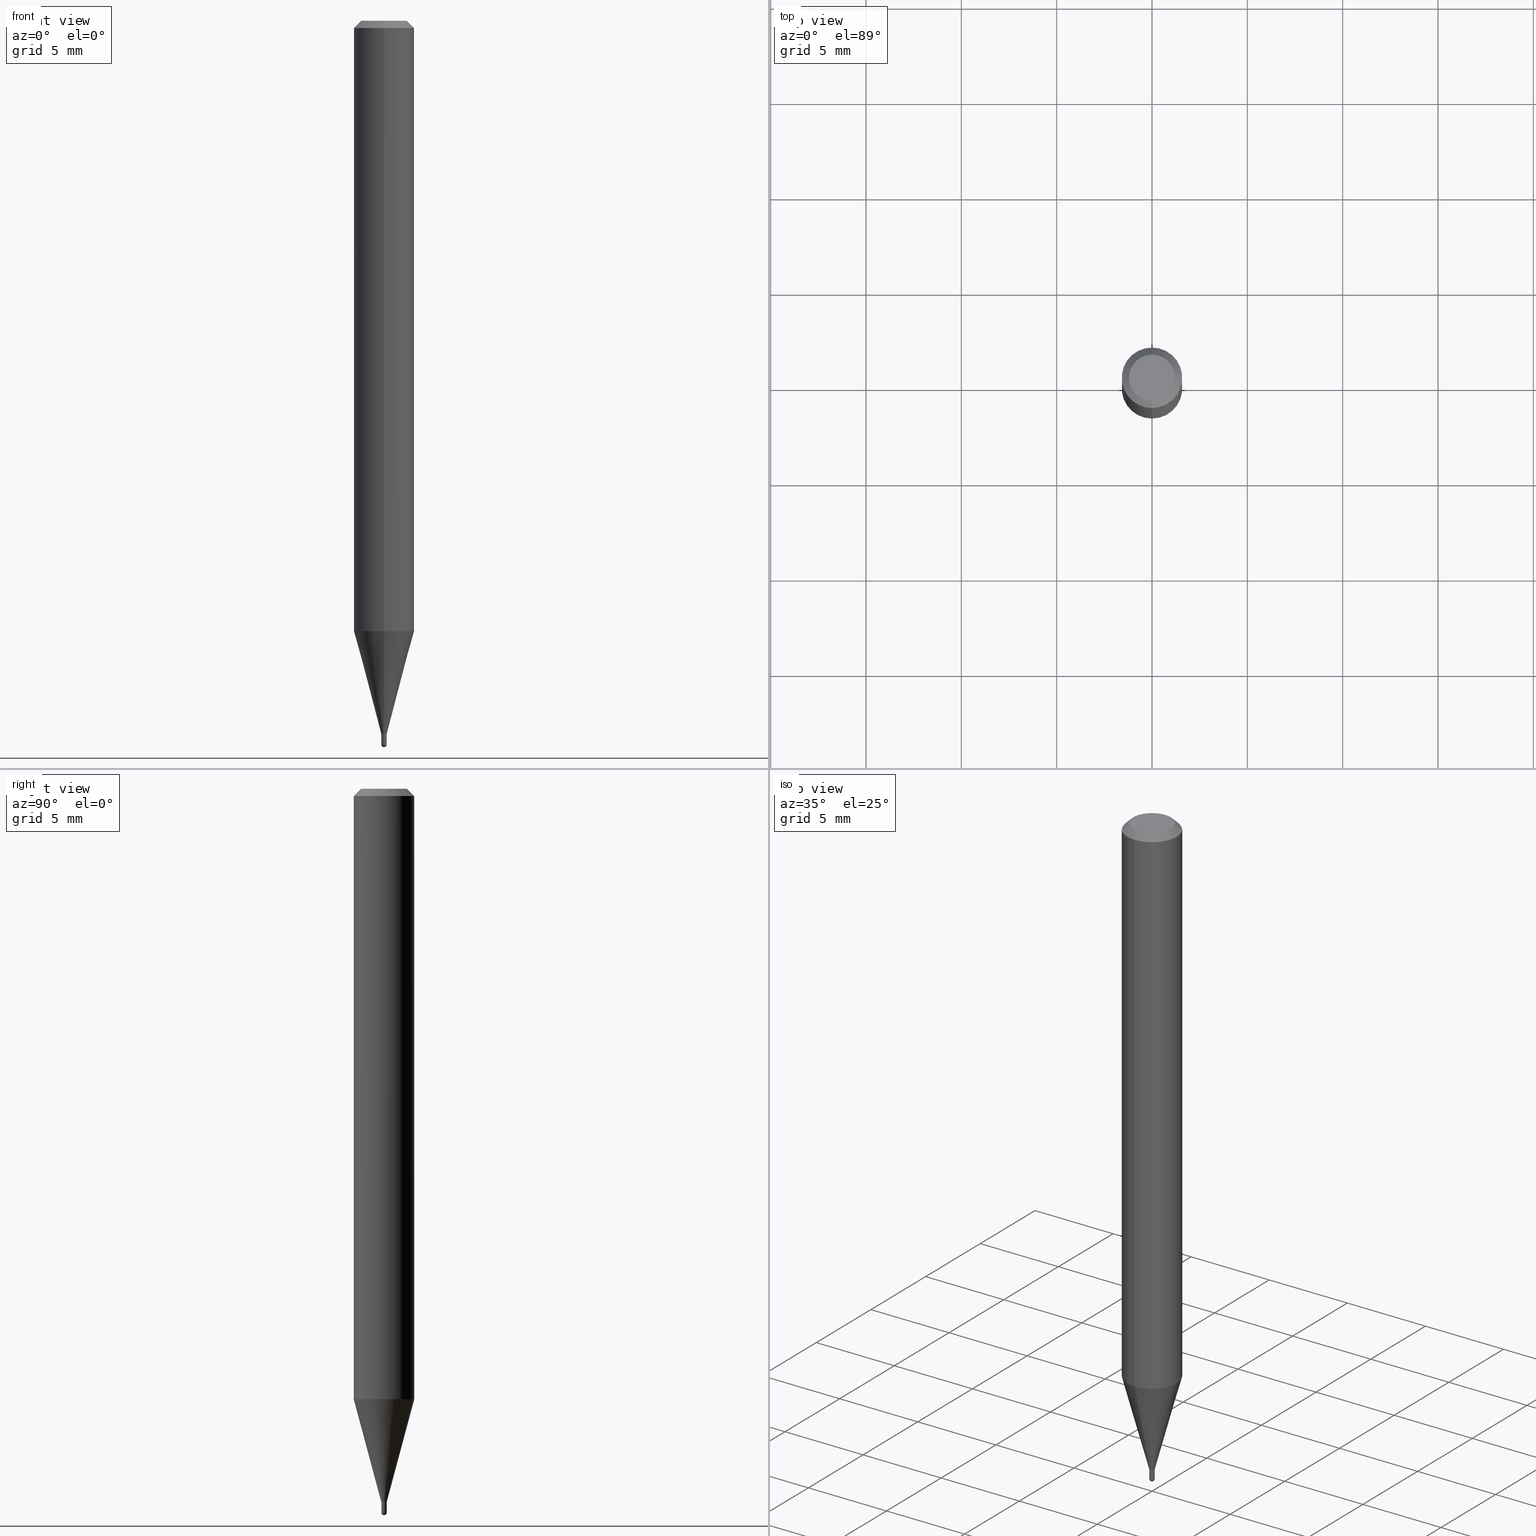
[diagram: canonical four-view strip — front | top / right | iso, engineering-drawing reading convention]
A machine part, canonical four-view strip (front | top / right | iso — engineering-drawing reading convention). The complete STEP part file that produces these views, byte-faithful:
ISO-10303-21;
HEADER;
FILE_DESCRIPTION (( 'STEP AP203' ),
    '1' );
FILE_NAME ('00675.STEP',
    '2024-03-07T18:00:32',
    ( '' ),
    ( '' ),
    'SwSTEP 2.0',
    'SolidWorks 2023',
    '' );
FILE_SCHEMA (( 'CONFIG_CONTROL_DESIGN' ));
ENDSEC;

DATA;
#1 = ORIENTED_EDGE ( 'NONE', *, *, #229, .T. ) ;
#2 = PERSON_AND_ORGANIZATION_ROLE ( 'classification_officer' ) ;
#3 = CARTESIAN_POINT ( 'NONE',  ( 3.907985046684097588E-17, 0.005499999999994779898, -1.473000000000000087 ) ) ;
#4 = APPROVAL_DATE_TIME ( #187, #510 ) ;
#5 = DIRECTION ( 'NONE',  ( -6.982962677686265922E-15, -1.000000000000000000, 0.000000000000000000 ) ) ;
#6 = ORIENTED_EDGE ( 'NONE', *, *, #48, .F. ) ;
#7 = DIRECTION ( 'NONE',  ( -6.982962677686265922E-15, -1.000000000000000000, 4.370956789862821150E-15 ) ) ;
#8 = VECTOR ( 'NONE', #314, 39.37007874015748143 ) ;
#9 = LOCAL_TIME ( 13, 0, 32.00000000000000000, #38 ) ;
#10 = EDGE_CURVE ( 'NONE', #96, #289, #19, .T. ) ;
#11 = CARTESIAN_POINT ( 'NONE',  ( 3.626630239572558053E-29, -5.177866825504385478E-15, -1.483000000000000096 ) ) ;
#12 = EDGE_CURVE ( 'NONE', #289, #14, #511, .T. ) ;
#13 = LINE ( 'NONE', #3, #17 ) ;
#14 = VERTEX_POINT ( 'NONE', #491 ) ;
#15 = CC_DESIGN_DATE_AND_TIME_ASSIGNMENT ( #359, #308, ( #463 ) ) ;
#16 = DIRECTION ( 'NONE',  ( -2.445468806185136597E-29, 3.491481338843145583E-15, 1.000000000000000000 ) ) ;
#17 = VECTOR ( 'NONE', #442, 39.37007874015748143 ) ;
#18 = ORIENTED_EDGE ( 'NONE', *, *, #206, .F. ) ;
#19 = LINE ( 'NONE', #210, #366 ) ;
#20 = DIRECTION ( 'NONE',  ( -6.982962677686265922E-15, -1.000000000000000000, 3.491459370070161145E-15 ) ) ;
#21 = DIRECTION ( 'NONE',  ( -6.982962677686265922E-15, -1.000000000000000000, 3.491459370070161145E-15 ) ) ;
#22 = EDGE_LOOP ( 'NONE', ( #379, #504 ) ) ;
#23 = CYLINDRICAL_SURFACE ( 'NONE', #261, 0.005499999999999922486 ) ;
#24 = ORIENTED_EDGE ( 'NONE', *, *, #304, .F. ) ;
#25 = DIRECTION ( 'NONE',  ( -6.982962677686265922E-15, -1.000000000000000000, 3.491459370070161539E-15 ) ) ;
#26 = EDGE_CURVE ( 'NONE', #174, #498, #213, .T. ) ;
#27 = DIRECTION ( 'NONE',  ( -2.445484146897318999E-29, 3.491459370070161145E-15, 1.000000000000000000 ) ) ;
#28 = DIMENSIONAL_EXPONENTS ( 1.000000000000000000, 0.000000000000000000, 0.000000000000000000, 0.000000000000000000, 0.000000000000000000, 0.000000000000000000, 0.000000000000000000 ) ;
#29 = CYLINDRICAL_SURFACE ( 'NONE', #350, 0.005499999999999999681 ) ;
#30 = DIRECTION ( 'NONE',  ( -6.982962677686265922E-15, -1.000000000000000000, 0.000000000000000000 ) ) ;
#31 = CARTESIAN_POINT ( 'NONE',  ( 3.552713678804126066E-17, 0.004999999999994821087, -1.483000000000000096 ) ) ;
#32 = AXIS2_PLACEMENT_3D ( 'NONE', #466, #224, #386 ) ;
#33 = DIRECTION ( 'NONE',  ( -2.445468806185136597E-29, 3.491481338843145583E-15, 1.000000000000000000 ) ) ;
#34 = APPLICATION_PROTOCOL_DEFINITION ( 'international standard', 'config_control_design', 1994, #145 ) ;
#35 = ORIENTED_EDGE ( 'NONE', *, *, #467, .F. ) ;
#36 =( NAMED_UNIT ( * ) PLANE_ANGLE_UNIT ( ) SI_UNIT ( $, .RADIAN. ) );
#37 = ORIENTED_EDGE ( 'NONE', *, *, #82, .F. ) ;
#38 = COORDINATED_UNIVERSAL_TIME_OFFSET ( 5, 0, .BEHIND. ) ;
#39 = VECTOR ( 'NONE', #485, 39.37007874015748143 ) ;
#40 = CARTESIAN_POINT ( 'NONE',  ( 3.654282789384638190E-29, -5.218692416640612921E-15, -1.494500000000000162 ) ) ;
#41 = ADVANCED_FACE ( 'NONE', ( #318 ), #109, .T. ) ;
#42 = DATE_TIME_ROLE ( 'creation_date' ) ;
#43 = CARTESIAN_POINT ( 'NONE',  ( 3.602198148379751749E-29, -5.142919652113348525E-15, -1.473000000000000087 ) ) ;
#44 = ADVANCED_FACE ( 'NONE', ( #484 ), #320, .T. ) ;
#45 = DIRECTION ( 'NONE',  ( -2.445468806185136597E-29, 3.491481338843145583E-15, 1.000000000000000000 ) ) ;
#46 = APPROVAL_STATUS ( 'not_yet_approved' ) ;
#47 = CARTESIAN_POINT ( 'NONE',  ( -3.840629472727392284E-17, -0.005499999999999922486, 1.920302653538561505E-17 ) ) ;
#48 = EDGE_CURVE ( 'NONE', #331, #340, #392, .T. ) ;
#49 = PERSON_AND_ORGANIZATION ( #425, #173 ) ;
#50 = CLOSED_SHELL ( 'NONE', ( #63, #259, #182, #100, #411 ) ) ;
#51 = DIRECTION ( 'NONE',  ( -4.937700262164674260E-15, -0.7071067811865632269, 0.7071067811865319186 ) ) ;
#52 = AXIS2_PLACEMENT_3D ( 'NONE', #376, #508, #30 ) ;
#53 = ORIENTED_EDGE ( 'NONE', *, *, #309, .F. ) ;
#54 = EDGE_CURVE ( 'NONE', #202, #197, #143, .T. ) ;
#55 = COORDINATED_UNIVERSAL_TIME_OFFSET ( 5, 0, .BEHIND. ) ;
#56 = DIRECTION ( 'NONE',  ( -1.000000000000000000, 6.982962677686265922E-15, -4.883557194083112901E-29 ) ) ;
#57 = ADVANCED_FACE ( 'NONE', ( #400 ), #323, .T. ) ;
#58 = DIRECTION ( 'NONE',  ( -2.445484146897318999E-29, 3.491459370070161145E-15, 1.000000000000000000 ) ) ;
#59 = ORIENTED_EDGE ( 'NONE', *, *, #206, .T. ) ;
#60 = CARTESIAN_POINT ( 'NONE',  ( -3.907985046676891837E-17, -0.005500000000005213392, -1.494500000000000162 ) ) ;
#61 = PRODUCT ( '00675', '00675', '', ( #468 ) ) ;
#62 = ORIENTED_EDGE ( 'NONE', *, *, #178, .F. ) ;
#63 = ADVANCED_FACE ( 'NONE', ( #382 ), #29, .T. ) ;
#64 = FACE_OUTER_BOUND ( 'NONE', #465, .T. ) ;
#65 = FACE_OUTER_BOUND ( 'NONE', #238, .T. ) ;
#66 = EDGE_LOOP ( 'NONE', ( #369, #265, #53, #419 ) ) ;
#67 = CYLINDRICAL_SURFACE ( 'NONE', #478, 0.005499999999999922486 ) ;
#68 = VECTOR ( 'NONE', #422, 39.37007874015748143 ) ;
#69 = EDGE_LOOP ( 'NONE', ( #154, #135, #342, #18 ) ) ;
#70 = EDGE_CURVE ( 'NONE', #498, #197, #159, .T. ) ;
#71 = CC_DESIGN_PERSON_AND_ORGANIZATION_ASSIGNMENT ( #233, #352, ( #104 ) ) ;
#72 = PERSON_AND_ORGANIZATION ( #425, #173 ) ;
#73 = CARTESIAN_POINT ( 'NONE',  ( -3.773273898774340269E-16, -0.04749999999999999362, 1.569829569697847922E-16 ) ) ;
#74 = ORIENTED_EDGE ( 'NONE', *, *, #54, .F. ) ;
#75 = EDGE_CURVE ( 'NONE', #14, #289, #98, .T. ) ;
#76 = DIRECTION ( 'NONE',  ( -2.445468806185136597E-29, 3.491481338843145583E-15, 1.000000000000000000 ) ) ;
#77 = ORIENTED_EDGE ( 'NONE', *, *, #334, .T. ) ;
#78 = AXIS2_PLACEMENT_3D ( 'NONE', #353, #275, #228 ) ;
#79 = APPROVAL_ROLE ( '' ) ;
#80 = DESIGN_CONTEXT ( 'detailed design', #145, 'design' ) ;
#81 = CARTESIAN_POINT ( 'NONE',  ( 3.625430247775275501E-29, -5.176088516129014112E-15, -1.482500000000000151 ) ) ;
#82 = EDGE_CURVE ( 'NONE', #201, #307, #232, .T. ) ;
#83 = CALENDAR_DATE ( 2024, 7, 3 ) ;
#84 = DIRECTION ( 'NONE',  ( -2.445484146897318999E-29, 3.491459370070161145E-15, 1.000000000000000000 ) ) ;
#85 = EDGE_LOOP ( 'NONE', ( #37, #284, #490, #24 ) ) ;
#86 = DIRECTION ( 'NONE',  ( -6.982962677686265922E-15, -1.000000000000000000, 3.483106191921935554E-15 ) ) ;
#87 = CARTESIAN_POINT ( 'NONE',  ( -4.364351673553912750E-16, -0.06250000000000005551, -0.01499999999999979128 ) ) ;
#88 = CC_DESIGN_DATE_AND_TIME_ASSIGNMENT ( #441, #42, ( #104 ) ) ;
#89 = DIRECTION ( 'NONE',  ( -6.982962677686265922E-15, -1.000000000000000000, 0.000000000000000000 ) ) ;
#90 = VECTOR ( 'NONE', #404, 39.37007874015748143 ) ;
#91 = CARTESIAN_POINT ( 'NONE',  ( 2.167032300185452705E-46, -3.093908925693345979E-32, -8.861363108547854562E-18 ) ) ;
#92 = CARTESIAN_POINT ( 'NONE',  ( 2.167032300185452705E-46, -3.093908925693345979E-32, -8.861363108547854562E-18 ) ) ;
#93 = VERTEX_POINT ( 'NONE', #474 ) ;
#94 = CARTESIAN_POINT ( 'NONE',  ( 3.668226220345980741E-31, -5.237189055105244947E-17, -0.01500000000000000812 ) ) ;
#95 = CC_DESIGN_PERSON_AND_ORGANIZATION_ASSIGNMENT ( #274, #152, ( #99 ) ) ;
#96 = VERTEX_POINT ( 'NONE', #439 ) ;
#97 = FACE_OUTER_BOUND ( 'NONE', #69, .T. ) ;
#98 = CIRCLE ( 'NONE', #110, 0.005499999999999922486 ) ;
#99 = PRODUCT_DEFINITION_FORMATION_WITH_SPECIFIED_SOURCE ( 'ANY', '', #61, .NOT_KNOWN. ) ;
#100 = ADVANCED_FACE ( 'NONE', ( #151 ), #360, .T. ) ;
#101 = CARTESIAN_POINT ( 'NONE',  ( 4.364351673553919652E-16, 0.06249999999999995143, -0.01500000000000022669 ) ) ;
#102 = ORIENTED_EDGE ( 'NONE', *, *, #156, .F. ) ;
#103 = DIRECTION ( 'NONE',  ( -6.982962677686265922E-15, -1.000000000000000000, 0.000000000000000000 ) ) ;
#104 = PRODUCT_DEFINITION ( 'UNKNOWN', '', #99, #80 ) ;
#105 =( LENGTH_UNIT ( ) NAMED_UNIT ( * ) SI_UNIT ( $, .METRE. ) );
#106 = AXIS2_PLACEMENT_3D ( 'NONE', #242, #481, #395 ) ;
#107 = AXIS2_PLACEMENT_3D ( 'NONE', #414, #364, #375 ) ;
#108 = CIRCLE ( 'NONE', #116, 0.005499999999999997946 ) ;
#109 = CONICAL_SURFACE ( 'NONE', #107, 0.06250000000000000000, 0.7853981633974483900 ) ;
#110 = AXIS2_PLACEMENT_3D ( 'NONE', #393, #127, #5 ) ;
#111 = CARTESIAN_POINT ( 'NONE',  ( 3.668226220345980741E-31, -5.237189055105244947E-17, -0.01500000000000000812 ) ) ;
#112 = ORIENTED_EDGE ( 'NONE', *, *, #178, .T. ) ;
#113 = APPROVAL_ROLE ( '' ) ;
#114 = DIRECTION ( 'NONE',  ( 6.982962677686265922E-15, 1.000000000000000000, 0.000000000000000000 ) ) ;
#115 = CARTESIAN_POINT ( 'NONE',  ( 3.626630239572558053E-29, -5.177866825504385478E-15, -1.483000000000000096 ) ) ;
#116 = AXIS2_PLACEMENT_3D ( 'NONE', #280, #16, #211 ) ;
#117 = EDGE_CURVE ( 'NONE', #141, #226, #335, .T. ) ;
#118 = PERSON_AND_ORGANIZATION ( #425, #173 ) ;
#119 = DIRECTION ( 'NONE',  ( -7.105427357601001070E-15, -1.000000000000000000, 0.000000000000000000 ) ) ;
#120 = ORIENTED_EDGE ( 'NONE', *, *, #117, .T. ) ;
#121 = DIRECTION ( 'NONE',  ( 1.000000000000000000, -6.982962677686245411E-15, 0.000000000000000000 ) ) ;
#122 = EDGE_CURVE ( 'NONE', #289, #374, #13, .T. ) ;
#123 = CARTESIAN_POINT ( 'NONE',  ( 3.654282789384638190E-29, -5.218692416640612921E-15, -1.494500000000000162 ) ) ;
#124 = EDGE_LOOP ( 'NONE', ( #147, #1, #207, #77, #102 ) ) ;
#125 = EDGE_CURVE ( 'NONE', #448, #96, #278, .T. ) ;
#126 = APPROVAL_ROLE ( '' ) ;
#127 = DIRECTION ( 'NONE',  ( -2.445484146897318999E-29, 3.491459370070161145E-15, 1.000000000000000000 ) ) ;
#128 = CARTESIAN_POINT ( 'NONE',  ( 3.625430247775275501E-29, -5.176088516129014112E-15, -1.482500000000000151 ) ) ;
#129 = AXIS2_PLACEMENT_3D ( 'NONE', #237, #76, #158 ) ;
#130 = AXIS2_PLACEMENT_3D ( 'NONE', #459, #421, #146 ) ;
#131 = DIRECTION ( 'NONE',  ( -2.445484146897318999E-29, 3.491459370070161145E-15, 1.000000000000000000 ) ) ;
#132 = ORIENTED_EDGE ( 'NONE', *, *, #506, .F. ) ;
#133 = ORIENTED_EDGE ( 'NONE', *, *, #122, .T. ) ;
#134 = DIRECTION ( 'NONE',  ( 1.000000000000000000, -6.982962677686265922E-15, 4.883557194083112340E-29 ) ) ;
#135 = ORIENTED_EDGE ( 'NONE', *, *, #389, .T. ) ;
#136 = DIRECTION ( 'NONE',  ( -6.982962677686265922E-15, -1.000000000000000000, 3.491459370070161145E-15 ) ) ;
#137 = CONICAL_SURFACE ( 'NONE', #423, 0.004999999999999999237, 0.7853981633974739252 ) ;
#138 = ORIENTED_EDGE ( 'NONE', *, *, #122, .F. ) ;
#139 = DIRECTION ( 'NONE',  ( 6.982962677686265133E-15, 1.000000000000000000, 0.000000000000000000 ) ) ;
#140 = CARTESIAN_POINT ( 'NONE',  ( 3.626652989848724651E-29, -5.177834245814049225E-15, -1.483000000000000096 ) ) ;
#141 = VERTEX_POINT ( 'NONE', #153 ) ;
#142 = DIRECTION ( 'NONE',  ( -1.807323732225330139E-15, -0.2588190451025181860, 0.9659258262890689783 ) ) ;
#143 = CIRCLE ( 'NONE', #230, 0.06250000000000000000 ) ;
#144 = AXIS2_PLACEMENT_3D ( 'NONE', #378, #27, #322 ) ;
#145 = APPLICATION_CONTEXT ( 'configuration controlled 3d designs of mechanical parts and assemblies' ) ;
#146 = DIRECTION ( 'NONE',  ( 6.982962677686265922E-15, 1.000000000000000000, -3.491459370070161539E-15 ) ) ;
#147 = ORIENTED_EDGE ( 'NONE', *, *, #429, .F. ) ;
#148 = DIRECTION ( 'NONE',  ( 2.445484146897318999E-29, -3.491459370070161145E-15, -1.000000000000000000 ) ) ;
#149 = CIRCLE ( 'NONE', #297, 0.005499999999999997946 ) ;
#150 = PERSON_AND_ORGANIZATION ( #425, #173 ) ;
#151 = FACE_OUTER_BOUND ( 'NONE', #85, .T. ) ;
#152 = PERSON_AND_ORGANIZATION_ROLE ( 'design_supplier' ) ;
#153 = CARTESIAN_POINT ( 'NONE',  ( 0.005499999999999997946, -5.236349137930007031E-15, -1.494500000000000162 ) ) ;
#154 = ORIENTED_EDGE ( 'NONE', *, *, #471, .F. ) ;
#155 = CARTESIAN_POINT ( 'NONE',  ( 4.440892098500625669E-16, 0.06250000000000000000, -2.182162106293850716E-16 ) ) ;
#156 = EDGE_CURVE ( 'NONE', #340, #331, #222, .T. ) ;
#157 = DIRECTION ( 'NONE',  ( -2.445468806185136597E-29, 3.491481338843145583E-15, 1.000000000000000000 ) ) ;
#158 = DIRECTION ( 'NONE',  ( 1.000000000000000000, -6.982962677686247778E-15, 0.000000000000000000 ) ) ;
#159 = LINE ( 'NONE', #199, #333 ) ;
#160 = VERTEX_POINT ( 'NONE', #315 ) ;
#161 = AXIS2_PLACEMENT_3D ( 'NONE', #40, #362, #119 ) ;
#162 = CARTESIAN_POINT ( 'NONE',  ( 3.840629472731096849E-17, 0.005499999999994776428, -1.494500000000000162 ) ) ;
#163 = CIRCLE ( 'NONE', #412, 0.06250000000000000000 ) ;
#164 = DIRECTION ( 'NONE',  ( -6.982962677686265922E-15, -1.000000000000000000, 3.483106191921935554E-15 ) ) ;
#165 = EDGE_CURVE ( 'NONE', #374, #93, #462, .T. ) ;
#166 = DIRECTION ( 'NONE',  ( -2.445484146897318999E-29, 3.491459370070161145E-15, 1.000000000000000000 ) ) ;
#167 = DIRECTION ( 'NONE',  ( -6.982962677686266711E-15, -1.000000000000000000, 3.491459370070161145E-15 ) ) ;
#168 = ORIENTED_EDGE ( 'NONE', *, *, #188, .T. ) ;
#169 = FACE_OUTER_BOUND ( 'NONE', #383, .T. ) ;
#170 = VECTOR ( 'NONE', #251, 39.37007874015748143 ) ;
#171 = APPROVAL ( #428, 'UNSPECIFIED' ) ;
#172 = ORIENTED_EDGE ( 'NONE', *, *, #214, .F. ) ;
#173 = ORGANIZATION ( 'UNSPECIFIED', 'UNSPECIFIED', '' ) ;
#174 = VERTEX_POINT ( 'NONE', #241 ) ;
#175 = FACE_OUTER_BOUND ( 'NONE', #66, .T. ) ;
#176 = ORIENTED_EDGE ( 'NONE', *, *, #70, .T. ) ;
#177 = DIRECTION ( 'NONE',  ( -6.982962677686265922E-15, -1.000000000000000000, 4.370956789862821150E-15 ) ) ;
#178 = EDGE_CURVE ( 'NONE', #226, #160, #203, .T. ) ;
#179 = DIRECTION ( 'NONE',  ( -2.445468806185136877E-29, 3.491481338843145188E-15, 1.000000000000000000 ) ) ;
#180 = CIRCLE ( 'NONE', #470, 0.04749999999999999362 ) ;
#181 = CIRCLE ( 'NONE', #505, 0.004999999999999999237 ) ;
#182 = ADVANCED_FACE ( 'NONE', ( #306 ), #190, .F. ) ;
#183 = PERSON_AND_ORGANIZATION ( #425, #173 ) ;
#184 = EDGE_CURVE ( 'NONE', #374, #202, #319, .T. ) ;
#185 = CONICAL_SURFACE ( 'NONE', #303, 0.005499999999999922486, 0.2617993877991502960 ) ;
#186 = APPROVAL_PERSON_ORGANIZATION ( #118, #339, #79 ) ;
#187 = DATE_AND_TIME ( #266, #9 ) ;
#188 = EDGE_CURVE ( 'NONE', #93, #197, #434, .T. ) ;
#189 = PERSON_AND_ORGANIZATION ( #425, #173 ) ;
#190 = PLANE ( 'NONE',  #417 ) ;
#191 = CC_DESIGN_PERSON_AND_ORGANIZATION_ASSIGNMENT ( #72, #388, ( #61 ) ) ;
#192 = SHAPE_DEFINITION_REPRESENTATION ( #276, #256 ) ;
#193 = DIRECTION ( 'NONE',  ( -6.982962677686265922E-15, -1.000000000000000000, 0.000000000000000000 ) ) ;
#194 = VECTOR ( 'NONE', #293, 39.37007874015748143 ) ;
#195 = DATE_AND_TIME ( #391, #487 ) ;
#196 = DIRECTION ( 'NONE',  ( -2.445484146897318999E-29, 3.491459370070161145E-15, 1.000000000000000000 ) ) ;
#197 = VERTEX_POINT ( 'NONE', #87 ) ;
#198 = ADVANCED_FACE ( 'NONE', ( #234 ), #185, .T. ) ;
#199 = CARTESIAN_POINT ( 'NONE',  ( -4.287811248607203282E-16, -0.06250000000000005551, -0.01499999999999979128 ) ) ;
#200 = CARTESIAN_POINT ( 'NONE',  ( 0.000000000000000000, 0.000000000000000000, 0.000000000000000000 ) ) ;
#201 = VERTEX_POINT ( 'NONE', #270 ) ;
#202 = VERTEX_POINT ( 'NONE', #437 ) ;
#203 = CIRCLE ( 'NONE', #129, 0.005499999999999997946 ) ;
#204 = CYLINDRICAL_SURFACE ( 'NONE', #255, 0.06250000000000000000 ) ;
#205 = VECTOR ( 'NONE', #179, 39.37007874015748143 ) ;
#206 = EDGE_CURVE ( 'NONE', #96, #448, #454, .T. ) ;
#207 = ORIENTED_EDGE ( 'NONE', *, *, #304, .T. ) ;
#208 = DIRECTION ( 'NONE',  ( -2.445484146897318439E-29, 3.491459370070161539E-15, 1.000000000000000000 ) ) ;
#209 = ORIENTED_EDGE ( 'NONE', *, *, #506, .T. ) ;
#210 = CARTESIAN_POINT ( 'NONE',  ( 3.907985046680495329E-17, 0.005499999999999922486, -1.920302653538561505E-17 ) ) ;
#211 = DIRECTION ( 'NONE',  ( 1.000000000000000000, -6.982962677686247778E-15, 0.000000000000000000 ) ) ;
#212 = DIRECTION ( 'NONE',  ( -1.000000000000000000, 6.982962677686265922E-15, -4.883557194083112901E-29 ) ) ;
#213 = CIRCLE ( 'NONE', #277, 0.04749999999999999362 ) ;
#214 = EDGE_CURVE ( 'NONE', #448, #14, #399, .T. ) ;
#215 = DIRECTION ( 'NONE',  ( -2.445484146897318999E-29, 3.491459370070161145E-15, 1.000000000000000000 ) ) ;
#216 = EDGE_LOOP ( 'NONE', ( #347, #285, #168, #74 ) ) ;
#217 = EDGE_CURVE ( 'NONE', #247, #448, #402, .T. ) ;
#218 = DIRECTION ( 'NONE',  ( -2.445484146897318999E-29, 3.491459370070161145E-15, 1.000000000000000000 ) ) ;
#219 = CARTESIAN_POINT ( 'NONE',  ( 0.000000000000000000, 0.000000000000000000, 0.000000000000000000 ) ) ;
#220 = DIRECTION ( 'NONE',  ( -2.445468806185136597E-29, 3.491481338843145583E-15, 1.000000000000000000 ) ) ;
#221 = FACE_OUTER_BOUND ( 'NONE', #124, .T. ) ;
#222 = CIRCLE ( 'NONE', #321, 0.005499999999999999681 ) ;
#223 = LOCAL_TIME ( 13, 0, 32.00000000000000000, #55 ) ;
#224 = DIRECTION ( 'NONE',  ( 0.000000000000000000, 0.000000000000000000, 1.000000000000000000 ) ) ;
#225 = FACE_OUTER_BOUND ( 'NONE', #22, .T. ) ;
#226 = VERTEX_POINT ( 'NONE', #162 ) ;
#227 = UNCERTAINTY_MEASURE_WITH_UNIT (LENGTH_MEASURE( 1.000000000000000082E-05 ), #254, 'distance_accuracy_value', 'NONE');
#228 = DIRECTION ( 'NONE',  ( 1.000000000000000000, -6.982962677686247778E-15, 0.000000000000000000 ) ) ;
#229 = EDGE_CURVE ( 'NONE', #160, #307, #149, .T. ) ;
#230 = AXIS2_PLACEMENT_3D ( 'NONE', #271, #438, #86 ) ;
#231 = ORIENTED_EDGE ( 'NONE', *, *, #389, .F. ) ;
#232 = CIRCLE ( 'NONE', #161, 0.005499999999999991007 ) ;
#233 = PERSON_AND_ORGANIZATION ( #425, #173 ) ;
#234 = FACE_OUTER_BOUND ( 'NONE', #410, .T. ) ;
#235 = PRODUCT_RELATED_PRODUCT_CATEGORY ( 'detail', '', ( #61 ) ) ;
#236 = DATE_AND_TIME ( #269, #223 ) ;
#237 = CARTESIAN_POINT ( 'NONE',  ( 3.654753130843686882E-29, -5.218018860901081637E-15, -1.494500000000000162 ) ) ;
#238 = EDGE_LOOP ( 'NONE', ( #132, #231 ) ) ;
#239 = DIRECTION ( 'NONE',  ( -6.982962677686265922E-15, -1.000000000000000000, 0.000000000000000000 ) ) ;
#240 = CIRCLE ( 'NONE', #445, 0.06250000000000000000 ) ;
#241 = CARTESIAN_POINT ( 'NONE',  ( 3.840629472727447874E-16, 0.04749999999999999362, -1.747056831868805136E-16 ) ) ;
#242 = CARTESIAN_POINT ( 'NONE',  ( 3.602198148379751749E-29, -5.142919652113348525E-15, -1.473000000000000087 ) ) ;
#243 = SPHERICAL_SURFACE ( 'NONE', #367, 0.005499999999999991007 ) ;
#244 = DIRECTION ( 'NONE',  ( -2.445484146897319279E-29, 3.491459370070161539E-15, 1.000000000000000000 ) ) ;
#245 = DIRECTION ( 'NONE',  ( -2.445484146897318999E-29, 3.491459370070161145E-15, 1.000000000000000000 ) ) ;
#246 = ADVANCED_FACE ( 'NONE', ( #65 ), #292, .F. ) ;
#247 = VERTEX_POINT ( 'NONE', #336 ) ;
#248 = DIRECTION ( 'NONE',  ( -2.445484146897318999E-29, 3.491459370070161145E-15, 1.000000000000000000 ) ) ;
#249 = CONICAL_SURFACE ( 'NONE', #351, 0.06250000000000000000, 0.7853981633974483900 ) ;
#250 = DIRECTION ( 'NONE',  ( -6.982962677686266711E-15, -1.000000000000000000, 3.491459370070161145E-15 ) ) ;
#251 = DIRECTION ( 'NONE',  ( 4.937700262164548042E-15, 0.7071067811865451302, -0.7071067811865499042 ) ) ;
#252 = ORIENTED_EDGE ( 'NONE', *, *, #165, .F. ) ;
#253 = CARTESIAN_POINT ( 'NONE',  ( 3.730349362744123537E-17, 0.004999999999994821087, -1.483000000000000096 ) ) ;
#254 =( CONVERSION_BASED_UNIT ( 'INCH', #507 ) LENGTH_UNIT ( ) NAMED_UNIT ( #28 ) );
#255 = AXIS2_PLACEMENT_3D ( 'NONE', #200, #131, #447 ) ;
#256 = ADVANCED_BREP_SHAPE_REPRESENTATION ( '00675', ( #316, #313, #32 ), #344 ) ;
#257 = CYLINDRICAL_SURFACE ( 'NONE', #479, 0.005499999999999999681 ) ;
#258 = DIRECTION ( 'NONE',  ( 1.000000000000000000, -6.982962677686265922E-15, 4.876176775795936353E-29 ) ) ;
#259 = ADVANCED_FACE ( 'NONE', ( #370 ), #243, .T. ) ;
#260 = CLOSED_SHELL ( 'NONE', ( #363, #288, #424, #295, #198, #44, #57, #41, #500, #246, #356, #268 ) ) ;
#261 = AXIS2_PLACEMENT_3D ( 'NONE', #330, #493, #136 ) ;
#262 = ORIENTED_EDGE ( 'NONE', *, *, #125, .F. ) ;
#263 = FACE_OUTER_BOUND ( 'NONE', #440, .T. ) ;
#264 = VERTEX_POINT ( 'NONE', #253 ) ;
#265 = ORIENTED_EDGE ( 'NONE', *, *, #184, .T. ) ;
#266 = CALENDAR_DATE ( 2024, 7, 3 ) ;
#267 = DIRECTION ( 'NONE',  ( -1.000000000000000000, 6.982962677686265922E-15, -4.876176775795935793E-29 ) ) ;
#268 = ADVANCED_FACE ( 'NONE', ( #169 ), #67, .T. ) ;
#269 = CALENDAR_DATE ( 2024, 7, 3 ) ;
#270 = CARTESIAN_POINT ( 'NONE',  ( 3.667968038548181110E-29, -5.237558786134484607E-15, -1.500000000000000222 ) ) ;
#271 = CARTESIAN_POINT ( 'NONE',  ( 3.668226220345980741E-31, -5.237189055105244947E-17, -0.01500000000000000812 ) ) ;
#272 = DIRECTION ( 'NONE',  ( -4.851104656540964275E-15, -0.7071067811865500152, -0.7071067811865450192 ) ) ;
#273 = ORIENTED_EDGE ( 'NONE', *, *, #12, .T. ) ;
#274 = PERSON_AND_ORGANIZATION ( #425, #173 ) ;
#275 = DIRECTION ( 'NONE',  ( -2.445468806185136597E-29, 3.491481338843145583E-15, 1.000000000000000000 ) ) ;
#276 = PRODUCT_DEFINITION_SHAPE ( 'NONE', 'NONE',  #104 ) ;
#277 = AXIS2_PLACEMENT_3D ( 'NONE', #91, #286, #250 ) ;
#278 = CIRCLE ( 'NONE', #311, 0.005499999999999923353 ) ;
#279 = VECTOR ( 'NONE', #142, 39.37007874015748143 ) ;
#280 = CARTESIAN_POINT ( 'NONE',  ( 3.654753130843686882E-29, -5.218018860901081637E-15, -1.494500000000000162 ) ) ;
#281 = ORIENTED_EDGE ( 'NONE', *, *, #54, .T. ) ;
#282 = CARTESIAN_POINT ( 'NONE',  ( 3.626652989848724651E-29, -5.177834245814049225E-15, -1.483000000000000096 ) ) ;
#283 = DIRECTION ( 'NONE',  ( -2.445484146897318999E-29, 3.491459370070161145E-15, 1.000000000000000000 ) ) ;
#284 = ORIENTED_EDGE ( 'NONE', *, *, #327, .T. ) ;
#285 = ORIENTED_EDGE ( 'NONE', *, *, #165, .T. ) ;
#286 = DIRECTION ( 'NONE',  ( -2.445484146897318999E-29, 3.491459370070161145E-15, 1.000000000000000000 ) ) ;
#287 = CARTESIAN_POINT ( 'NONE',  ( 0.005499999999999999681, -5.216273120231659345E-15, -1.483000000000000096 ) ) ;
#288 = ADVANCED_FACE ( 'NONE', ( #409 ), #358, .T. ) ;
#289 = VERTEX_POINT ( 'NONE', #328 ) ;
#290 = CIRCLE ( 'NONE', #512, 0.005499999999999991007 ) ;
#291 = DIRECTION ( 'NONE',  ( -6.982962677686265922E-15, -1.000000000000000000, 0.000000000000000000 ) ) ;
#292 = PLANE ( 'NONE',  #486 ) ;
#293 = DIRECTION ( 'NONE',  ( -2.445468806185136877E-29, 3.491481338843145188E-15, 1.000000000000000000 ) ) ;
#294 = LINE ( 'NONE', #341, #205 ) ;
#295 = ADVANCED_FACE ( 'NONE', ( #175 ), #204, .T. ) ;
#296 = DIRECTION ( 'NONE',  ( -6.982962677686265922E-15, -1.000000000000000000, 0.000000000000000000 ) ) ;
#297 = AXIS2_PLACEMENT_3D ( 'NONE', #488, #450, #413 ) ;
#298 = APPLICATION_PROTOCOL_DEFINITION ( 'international standard', 'config_control_design', 1994, #301 ) ;
#299 = CC_DESIGN_PERSON_AND_ORGANIZATION_ASSIGNMENT ( #150, #476, ( #99 ) ) ;
#300 = ORIENTED_EDGE ( 'NONE', *, *, #10, .T. ) ;
#301 = APPLICATION_CONTEXT ( 'configuration controlled 3d designs of mechanical parts and assemblies' ) ;
#302 = LINE ( 'NONE', #31, #68 ) ;
#303 = AXIS2_PLACEMENT_3D ( 'NONE', #43, #430, #239 ) ;
#304 = EDGE_CURVE ( 'NONE', #307, #141, #108, .T. ) ;
#305 = APPROVAL_DATE_TIME ( #195, #171 ) ;
#306 = FACE_OUTER_BOUND ( 'NONE', #489, .T. ) ;
#307 = VERTEX_POINT ( 'NONE', #60 ) ;
#308 = DATE_TIME_ROLE ( 'classification_date' ) ;
#309 = EDGE_CURVE ( 'NONE', #197, #202, #163, .T. ) ;
#310 = CARTESIAN_POINT ( 'NONE',  ( 3.840629472731072813E-17, 0.005499999999994821531, -1.483000000000000096 ) ) ;
#311 = AXIS2_PLACEMENT_3D ( 'NONE', #81, #196, #89 ) ;
#312 = CC_DESIGN_APPROVAL ( #171, ( #104 ) ) ;
#313 = MANIFOLD_SOLID_BREP ( 'Body-Move/Copy2[2]', #260 ) ;
#314 = DIRECTION ( 'NONE',  ( -2.445484146897319279E-29, 3.491459370070161539E-15, 1.000000000000000000 ) ) ;
#315 = CARTESIAN_POINT ( 'NONE',  ( -0.005499999999999997946, -5.158862992735928801E-15, -1.494500000000000162 ) ) ;
#316 = MANIFOLD_SOLID_BREP ( 'Body-Move/Copy2[1]', #50 ) ;
#317 = ORIENTED_EDGE ( 'NONE', *, *, #214, .T. ) ;
#318 = FACE_OUTER_BOUND ( 'NONE', #332, .T. ) ;
#319 = LINE ( 'NONE', #155, #39 ) ;
#320 = CONICAL_SURFACE ( 'NONE', #106, 0.005499999999999922486, 0.2617993877991502960 ) ;
#321 = AXIS2_PLACEMENT_3D ( 'NONE', #11, #157, #355 ) ;
#322 = DIRECTION ( 'NONE',  ( -6.982962677686265922E-15, -1.000000000000000000, 0.000000000000000000 ) ) ;
#323 = CYLINDRICAL_SURFACE ( 'NONE', #433, 0.06250000000000000000 ) ;
#324 = ORIENTED_EDGE ( 'NONE', *, *, #334, .F. ) ;
#325 = ORIENTED_EDGE ( 'NONE', *, *, #82, .T. ) ;
#326 = CARTESIAN_POINT ( 'NONE',  ( 3.602198148379751749E-29, -5.142919652113348525E-15, -1.473000000000000087 ) ) ;
#327 = EDGE_CURVE ( 'NONE', #201, #226, #290, .T. ) ;
#328 = CARTESIAN_POINT ( 'NONE',  ( 2.415845301584673113E-16, 0.005499999999994779898, -1.473000000000000087 ) ) ;
#329 = EDGE_LOOP ( 'NONE', ( #209, #496, #262, #408 ) ) ;
#330 = CARTESIAN_POINT ( 'NONE',  ( 0.000000000000000000, 0.000000000000000000, 0.000000000000000000 ) ) ;
#331 = VERTEX_POINT ( 'NONE', #287 ) ;
#332 = EDGE_LOOP ( 'NONE', ( #452, #460, #480, #281 ) ) ;
#333 = VECTOR ( 'NONE', #272, 39.37007874015748143 ) ;
#334 = EDGE_CURVE ( 'NONE', #141, #331, #453, .T. ) ;
#335 = CIRCLE ( 'NONE', #78, 0.005499999999999997946 ) ;
#336 = CARTESIAN_POINT ( 'NONE',  ( -3.491481338839505335E-17, -0.005000000000005176519, -1.483000000000000096 ) ) ;
#337 = CARTESIAN_POINT ( 'NONE',  ( 3.654282789384638190E-29, -5.218692416640612921E-15, -1.494500000000000162 ) ) ;
#338 = ORIENTED_EDGE ( 'NONE', *, *, #125, .T. ) ;
#339 = APPROVAL ( #46, 'UNSPECIFIED' ) ;
#340 = VERTEX_POINT ( 'NONE', #499 ) ;
#341 = CARTESIAN_POINT ( 'NONE',  ( -0.005499999999999999681, 3.907985046680550795E-17, -2.705414299640198099E-31 ) ) ;
#342 = ORIENTED_EDGE ( 'NONE', *, *, #217, .T. ) ;
#343 = CARTESIAN_POINT ( 'NONE',  ( -3.840629472723789408E-17, -0.005500000000005065073, -1.473000000000000087 ) ) ;
#344 =( GEOMETRIC_REPRESENTATION_CONTEXT ( 3 ) GLOBAL_UNCERTAINTY_ASSIGNED_CONTEXT ( ( #227 ) ) GLOBAL_UNIT_ASSIGNED_CONTEXT ( ( #254, #36, #349 ) ) REPRESENTATION_CONTEXT ( 'NONE', 'WORKASPACE' ) );
#345 = EDGE_CURVE ( 'NONE', #498, #174, #180, .T. ) ;
#346 = DIRECTION ( 'NONE',  ( 6.982962677686265922E-15, 1.000000000000000000, -3.483106191921935554E-15 ) ) ;
#347 = ORIENTED_EDGE ( 'NONE', *, *, #184, .F. ) ;
#348 = CARTESIAN_POINT ( 'NONE',  ( 3.081977896516226036E-29, -4.400192337698486268E-15, -1.260273103968574615 ) ) ;
#349 =( NAMED_UNIT ( * ) SI_UNIT ( $, .STERADIAN. ) SOLID_ANGLE_UNIT ( ) );
#350 = AXIS2_PLACEMENT_3D ( 'NONE', #219, #220, #258 ) ;
#351 = AXIS2_PLACEMENT_3D ( 'NONE', #111, #148, #346 ) ;
#352 = PERSON_AND_ORGANIZATION_ROLE ( 'creator' ) ;
#353 = CARTESIAN_POINT ( 'NONE',  ( 3.654753130843686882E-29, -5.218018860901081637E-15, -1.494500000000000162 ) ) ;
#354 = APPROVAL_STATUS ( 'not_yet_approved' ) ;
#355 = DIRECTION ( 'NONE',  ( 1.000000000000000000, -6.982962677686245411E-15, 0.000000000000000000 ) ) ;
#356 = ADVANCED_FACE ( 'NONE', ( #97 ), #137, .T. ) ;
#357 = DIRECTION ( 'NONE',  ( -2.445484146897318999E-29, 3.491459370070161145E-15, 1.000000000000000000 ) ) ;
#358 = CONICAL_SURFACE ( 'NONE', #144, 0.004999999999999999237, 0.7853981633974739252 ) ;
#359 = DATE_AND_TIME ( #83, #418 ) ;
#360 = SPHERICAL_SURFACE ( 'NONE', #435, 0.005499999999999991007 ) ;
#361 = CARTESIAN_POINT ( 'NONE',  ( 0.000000000000000000, 0.000000000000000000, 0.000000000000000000 ) ) ;
#362 = DIRECTION ( 'NONE',  ( -1.000000000000000000, 7.105427357601001070E-15, -4.926315508542082329E-29 ) ) ;
#363 = ADVANCED_FACE ( 'NONE', ( #64 ), #23, .T. ) ;
#364 = DIRECTION ( 'NONE',  ( 2.445484146897318999E-29, -3.491459370070161145E-15, -1.000000000000000000 ) ) ;
#365 = ORIENTED_EDGE ( 'NONE', *, *, #309, .T. ) ;
#366 = VECTOR ( 'NONE', #244, 39.37007874015748143 ) ;
#367 = AXIS2_PLACEMENT_3D ( 'NONE', #406, #212, #492 ) ;
#368 = APPROVAL_PERSON_ORGANIZATION ( #189, #510, #126 ) ;
#369 = ORIENTED_EDGE ( 'NONE', *, *, #405, .T. ) ;
#370 = FACE_OUTER_BOUND ( 'NONE', #420, .T. ) ;
#371 = ORIENTED_EDGE ( 'NONE', *, *, #327, .F. ) ;
#372 = EDGE_CURVE ( 'NONE', #174, #202, #456, .T. ) ;
#373 = CARTESIAN_POINT ( 'NONE',  ( 0.005499999999999999681, -3.840629472727445902E-17, 2.681897226687764826E-31 ) ) ;
#374 = VERTEX_POINT ( 'NONE', #415 ) ;
#375 = DIRECTION ( 'NONE',  ( 6.982962677686265922E-15, 1.000000000000000000, -3.483106191921935554E-15 ) ) ;
#376 = CARTESIAN_POINT ( 'NONE',  ( 3.626652989848724651E-29, -5.177834245814049225E-15, -1.483000000000000096 ) ) ;
#377 = VECTOR ( 'NONE', #51, 39.37007874015748143 ) ;
#378 = CARTESIAN_POINT ( 'NONE',  ( 3.626652989848724651E-29, -5.177834245814049225E-15, -1.483000000000000096 ) ) ;
#379 = ORIENTED_EDGE ( 'NONE', *, *, #26, .T. ) ;
#380 = ORIENTED_EDGE ( 'NONE', *, *, #75, .T. ) ;
#381 = ORIENTED_EDGE ( 'NONE', *, *, #372, .F. ) ;
#382 = FACE_OUTER_BOUND ( 'NONE', #431, .T. ) ;
#383 = EDGE_LOOP ( 'NONE', ( #475, #59, #317, #501 ) ) ;
#384 = CARTESIAN_POINT ( 'NONE',  ( -3.840629472723779548E-17, -0.005500000000005117115, -1.482500000000000151 ) ) ;
#385 = ORIENTED_EDGE ( 'NONE', *, *, #75, .F. ) ;
#386 = DIRECTION ( 'NONE',  ( 1.000000000000000000, 0.000000000000000000, 0.000000000000000000 ) ) ;
#387 = LOCAL_TIME ( 13, 0, 32.00000000000000000, #473 ) ;
#388 = PERSON_AND_ORGANIZATION_ROLE ( 'design_owner' ) ;
#389 = EDGE_CURVE ( 'NONE', #264, #247, #494, .T. ) ;
#390 = ORIENTED_EDGE ( 'NONE', *, *, #405, .F. ) ;
#391 = CALENDAR_DATE ( 2024, 7, 3 ) ;
#392 = CIRCLE ( 'NONE', #461, 0.005499999999999999681 ) ;
#393 = CARTESIAN_POINT ( 'NONE',  ( 3.602198148379751749E-29, -5.142919652113348525E-15, -1.473000000000000087 ) ) ;
#394 = AXIS2_PLACEMENT_3D ( 'NONE', #397, #357, #7 ) ;
#395 = DIRECTION ( 'NONE',  ( -6.982962677686265922E-15, -1.000000000000000000, 0.000000000000000000 ) ) ;
#396 = COORDINATED_UNIVERSAL_TIME_OFFSET ( 5, 0, .BEHIND. ) ;
#397 = CARTESIAN_POINT ( 'NONE',  ( 3.081977896516226036E-29, -4.400192337698486268E-15, -1.260273103968574615 ) ) ;
#398 = APPROVAL_DATE_TIME ( #236, #339 ) ;
#399 = LINE ( 'NONE', #47, #8 ) ;
#400 = FACE_OUTER_BOUND ( 'NONE', #216, .T. ) ;
#401 = CALENDAR_DATE ( 2024, 7, 3 ) ;
#402 = LINE ( 'NONE', #482, #377 ) ;
#403 = ORIENTED_EDGE ( 'NONE', *, *, #48, .T. ) ;
#404 = DIRECTION ( 'NONE',  ( -2.445484146897319279E-29, 3.491459370070161539E-15, 1.000000000000000000 ) ) ;
#405 = EDGE_CURVE ( 'NONE', #93, #374, #240, .T. ) ;
#406 = CARTESIAN_POINT ( 'NONE',  ( 3.654282789384638190E-29, -5.218692416640612921E-15, -1.494500000000000162 ) ) ;
#407 = CC_DESIGN_PERSON_AND_ORGANIZATION_ASSIGNMENT ( #49, #2, ( #463 ) ) ;
#408 = ORIENTED_EDGE ( 'NONE', *, *, #217, .F. ) ;
#409 = FACE_OUTER_BOUND ( 'NONE', #329, .T. ) ;
#410 = EDGE_LOOP ( 'NONE', ( #380, #133, #390, #35 ) ) ;
#411 = ADVANCED_FACE ( 'NONE', ( #221 ), #257, .T. ) ;
#412 = AXIS2_PLACEMENT_3D ( 'NONE', #94, #245, #164 ) ;
#413 = DIRECTION ( 'NONE',  ( 1.000000000000000000, -6.982962677686247778E-15, 0.000000000000000000 ) ) ;
#414 = CARTESIAN_POINT ( 'NONE',  ( 3.668226220345980741E-31, -5.237189055105244947E-17, -0.01500000000000000812 ) ) ;
#415 = CARTESIAN_POINT ( 'NONE',  ( 4.440892098500932831E-16, 0.06249999999999558686, -1.260273103968574837 ) ) ;
#416 = DIRECTION ( 'NONE',  ( -2.445484146897318999E-29, 3.491459370070161145E-15, 1.000000000000000000 ) ) ;
#417 = AXIS2_PLACEMENT_3D ( 'NONE', #310, #483, #267 ) ;
#418 = LOCAL_TIME ( 13, 0, 32.00000000000000000, #436 ) ;
#419 = ORIENTED_EDGE ( 'NONE', *, *, #188, .F. ) ;
#420 = EDGE_LOOP ( 'NONE', ( #371, #325, #444, #62 ) ) ;
#421 = DIRECTION ( 'NONE',  ( 2.445484146897318439E-29, -3.491459370070161539E-15, -1.000000000000000000 ) ) ;
#422 = DIRECTION ( 'NONE',  ( 5.024295867788190974E-15, 0.7071067811865681119, 0.7071067811865270336 ) ) ;
#423 = AXIS2_PLACEMENT_3D ( 'NONE', #458, #248, #103 ) ;
#424 = ADVANCED_FACE ( 'NONE', ( #263 ), #249, .T. ) ;
#425 = PERSON ( 'UNSPECIFIED', 'UNSPECIFIED', 'UNSPECIFIED', ('UNSPECIFIED'), ('UNSPECIFIED'), ('UNSPECIFIED') ) ;
#426 = LINE ( 'NONE', #343, #279 ) ;
#427 = EDGE_LOOP ( 'NONE', ( #138, #273, #451, #252 ) ) ;
#428 = APPROVAL_STATUS ( 'not_yet_approved' ) ;
#429 = EDGE_CURVE ( 'NONE', #160, #340, #294, .T. ) ;
#430 = DIRECTION ( 'NONE',  ( -2.445484146897318999E-29, 3.491459370070161145E-15, 1.000000000000000000 ) ) ;
#431 = EDGE_LOOP ( 'NONE', ( #112, #457, #6, #324, #120 ) ) ;
#432 = SECURITY_CLASSIFICATION_LEVEL ( 'unclassified' ) ;
#433 = AXIS2_PLACEMENT_3D ( 'NONE', #361, #283, #21 ) ;
#434 = LINE ( 'NONE', #477, #90 ) ;
#435 = AXIS2_PLACEMENT_3D ( 'NONE', #123, #56, #114 ) ;
#436 = COORDINATED_UNIVERSAL_TIME_OFFSET ( 5, 0, .BEHIND. ) ;
#437 = CARTESIAN_POINT ( 'NONE',  ( 4.440892098500935790E-16, 0.06249999999999995143, -0.01500000000000022669 ) ) ;
#438 = DIRECTION ( 'NONE',  ( -2.445484146897318999E-29, 3.491459370070161145E-15, 1.000000000000000000 ) ) ;
#439 = CARTESIAN_POINT ( 'NONE',  ( 3.907985046684109298E-17, 0.005499999999994729591, -1.482500000000000151 ) ) ;
#440 = EDGE_LOOP ( 'NONE', ( #472, #176, #365, #381 ) ) ;
#441 = DATE_AND_TIME ( #401, #387 ) ;
#442 = DIRECTION ( 'NONE',  ( 1.839019923739600315E-15, 0.2588190451025249583, 0.9659258262890670910 ) ) ;
#443 = AXIS2_PLACEMENT_3D ( 'NONE', #326, #166, #291 ) ;
#444 = ORIENTED_EDGE ( 'NONE', *, *, #229, .F. ) ;
#445 = AXIS2_PLACEMENT_3D ( 'NONE', #348, #218, #177 ) ;
#446 = CC_DESIGN_APPROVAL ( #510, ( #99 ) ) ;
#447 = DIRECTION ( 'NONE',  ( -6.982962677686265922E-15, -1.000000000000000000, 3.491459370070161145E-15 ) ) ;
#448 = VERTEX_POINT ( 'NONE', #384 ) ;
#449 = ORIENTED_EDGE ( 'NONE', *, *, #156, .T. ) ;
#450 = DIRECTION ( 'NONE',  ( -2.445468806185136597E-29, 3.491481338843145583E-15, 1.000000000000000000 ) ) ;
#451 = ORIENTED_EDGE ( 'NONE', *, *, #467, .T. ) ;
#452 = ORIENTED_EDGE ( 'NONE', *, *, #70, .F. ) ;
#453 = LINE ( 'NONE', #373, #194 ) ;
#454 = CIRCLE ( 'NONE', #503, 0.005499999999999923353 ) ;
#455 = CC_DESIGN_SECURITY_CLASSIFICATION ( #463, ( #99 ) ) ;
#456 = LINE ( 'NONE', #101, #170 ) ;
#457 = ORIENTED_EDGE ( 'NONE', *, *, #429, .T. ) ;
#458 = CARTESIAN_POINT ( 'NONE',  ( 3.626652989848724651E-29, -5.177834245814049225E-15, -1.483000000000000096 ) ) ;
#459 = CARTESIAN_POINT ( 'NONE',  ( 3.316907271900976096E-16, 0.04749999999999999362, -1.702750016326065771E-16 ) ) ;
#460 = ORIENTED_EDGE ( 'NONE', *, *, #26, .F. ) ;
#461 = AXIS2_PLACEMENT_3D ( 'NONE', #115, #45, #121 ) ;
#462 = CIRCLE ( 'NONE', #394, 0.06250000000000000000 ) ;
#463 = SECURITY_CLASSIFICATION ( '', '', #432 ) ;
#464 = APPROVAL_PERSON_ORGANIZATION ( #183, #171, #113 ) ;
#465 = EDGE_LOOP ( 'NONE', ( #338, #300, #385, #172 ) ) ;
#466 = CARTESIAN_POINT ( 'NONE',  ( 0.000000000000000000, 0.000000000000000000, 0.000000000000000000 ) ) ;
#467 = EDGE_CURVE ( 'NONE', #14, #93, #426, .T. ) ;
#468 = MECHANICAL_CONTEXT ( 'NONE', #301, 'mechanical' ) ;
#469 = PLANE ( 'NONE',  #130 ) ;
#470 = AXIS2_PLACEMENT_3D ( 'NONE', #92, #416, #167 ) ;
#471 = EDGE_CURVE ( 'NONE', #264, #96, #302, .T. ) ;
#472 = ORIENTED_EDGE ( 'NONE', *, *, #345, .F. ) ;
#473 = COORDINATED_UNIVERSAL_TIME_OFFSET ( 5, 0, .BEHIND. ) ;
#474 = CARTESIAN_POINT ( 'NONE',  ( -4.364351673553608052E-16, -0.06250000000000439926, -1.260273103968574393 ) ) ;
#475 = ORIENTED_EDGE ( 'NONE', *, *, #10, .F. ) ;
#476 = PERSON_AND_ORGANIZATION_ROLE ( 'creator' ) ;
#477 = CARTESIAN_POINT ( 'NONE',  ( -4.364351673553916201E-16, -0.06250000000000000000, 2.182162106293850716E-16 ) ) ;
#478 = AXIS2_PLACEMENT_3D ( 'NONE', #497, #58, #20 ) ;
#479 = AXIS2_PLACEMENT_3D ( 'NONE', #502, #33, #509 ) ;
#480 = ORIENTED_EDGE ( 'NONE', *, *, #372, .T. ) ;
#481 = DIRECTION ( 'NONE',  ( -2.445484146897318999E-29, 3.491459370070161145E-15, 1.000000000000000000 ) ) ;
#482 = CARTESIAN_POINT ( 'NONE',  ( -3.491481338839505335E-17, -0.005000000000005176519, -1.483000000000000096 ) ) ;
#483 = DIRECTION ( 'NONE',  ( 2.438088387897960049E-29, -3.491481338843145188E-15, -1.000000000000000000 ) ) ;
#484 = FACE_OUTER_BOUND ( 'NONE', #427, .T. ) ;
#485 = DIRECTION ( 'NONE',  ( -2.445484146897319279E-29, 3.491459370070161539E-15, 1.000000000000000000 ) ) ;
#486 = AXIS2_PLACEMENT_3D ( 'NONE', #282, #208, #25 ) ;
#487 = LOCAL_TIME ( 13, 0, 32.00000000000000000, #396 ) ;
#488 = CARTESIAN_POINT ( 'NONE',  ( 3.654753130843686882E-29, -5.218018860901081637E-15, -1.494500000000000162 ) ) ;
#489 = EDGE_LOOP ( 'NONE', ( #403, #449 ) ) ;
#490 = ORIENTED_EDGE ( 'NONE', *, *, #117, .F. ) ;
#491 = CARTESIAN_POINT ( 'NONE',  ( -3.840629472723789408E-17, -0.005500000000005065073, -1.473000000000000087 ) ) ;
#492 = DIRECTION ( 'NONE',  ( 6.982962677686265922E-15, 1.000000000000000000, 0.000000000000000000 ) ) ;
#493 = DIRECTION ( 'NONE',  ( -2.445484146897318999E-29, 3.491459370070161145E-15, 1.000000000000000000 ) ) ;
#494 = CIRCLE ( 'NONE', #52, 0.004999999999999999237 ) ;
#495 = CC_DESIGN_APPROVAL ( #339, ( #463 ) ) ;
#496 = ORIENTED_EDGE ( 'NONE', *, *, #471, .T. ) ;
#497 = CARTESIAN_POINT ( 'NONE',  ( 0.000000000000000000, 0.000000000000000000, 0.000000000000000000 ) ) ;
#498 = VERTEX_POINT ( 'NONE', #73 ) ;
#499 = CARTESIAN_POINT ( 'NONE',  ( -0.005499999999999999681, -5.158862992735928801E-15, -1.483000000000000096 ) ) ;
#500 = ADVANCED_FACE ( 'NONE', ( #225 ), #469, .F. ) ;
#501 = ORIENTED_EDGE ( 'NONE', *, *, #12, .F. ) ;
#502 = CARTESIAN_POINT ( 'NONE',  ( 0.000000000000000000, 0.000000000000000000, 0.000000000000000000 ) ) ;
#503 = AXIS2_PLACEMENT_3D ( 'NONE', #128, #84, #193 ) ;
#504 = ORIENTED_EDGE ( 'NONE', *, *, #345, .T. ) ;
#505 = AXIS2_PLACEMENT_3D ( 'NONE', #140, #215, #296 ) ;
#506 = EDGE_CURVE ( 'NONE', #247, #264, #181, .T. ) ;
#507 = LENGTH_MEASURE_WITH_UNIT ( LENGTH_MEASURE( 0.02539999999999999897 ), #105 );
#508 = DIRECTION ( 'NONE',  ( -2.445484146897318999E-29, 3.491459370070161145E-15, 1.000000000000000000 ) ) ;
#509 = DIRECTION ( 'NONE',  ( 1.000000000000000000, -6.982962677686265922E-15, 4.876176775795936353E-29 ) ) ;
#510 = APPROVAL ( #354, 'UNSPECIFIED' ) ;
#511 = CIRCLE ( 'NONE', #443, 0.005499999999999922486 ) ;
#512 = AXIS2_PLACEMENT_3D ( 'NONE', #337, #134, #139 ) ;
ENDSEC;
END-ISO-10303-21;
